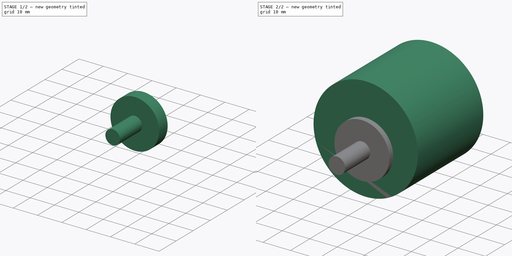
[diagram: build sequence overview — one tinted view per stage of 2, left to right]
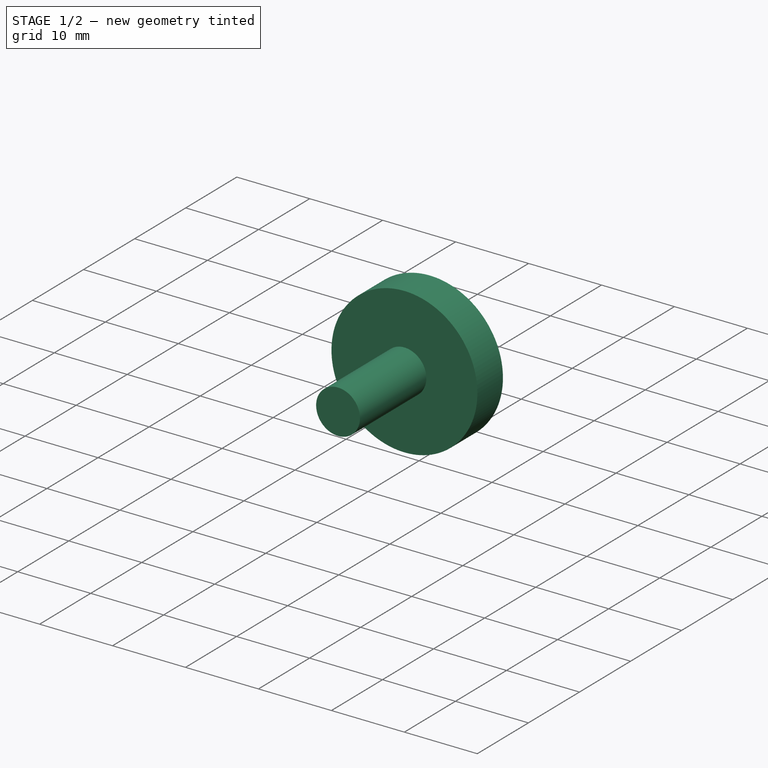
[diagram: stage 1 of 2 — iso view after this stage's code; geometry added in this stage tinted green]
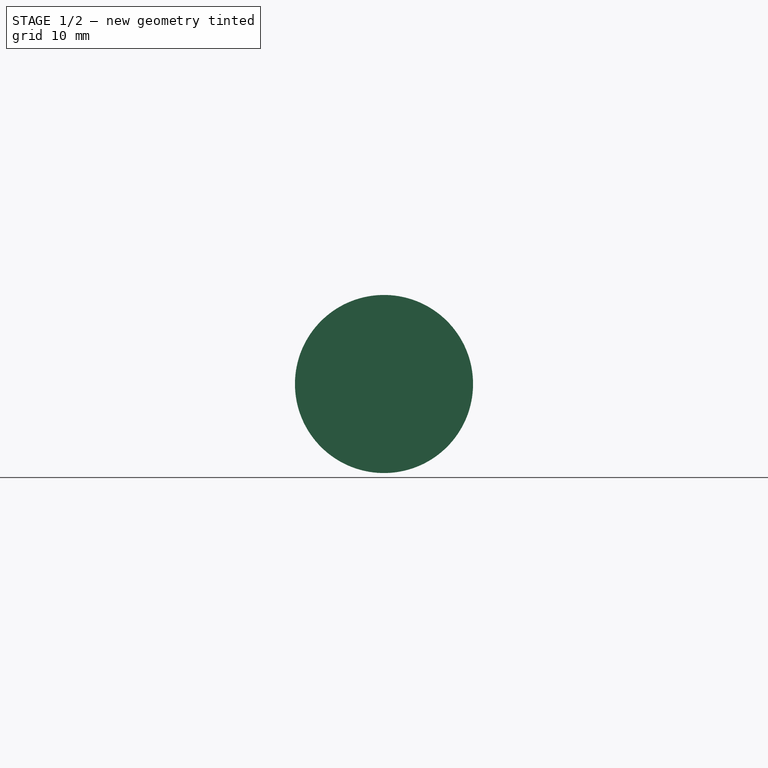
[diagram: stage 1 of 2 — front view after this stage's code; geometry added in this stage tinted green]
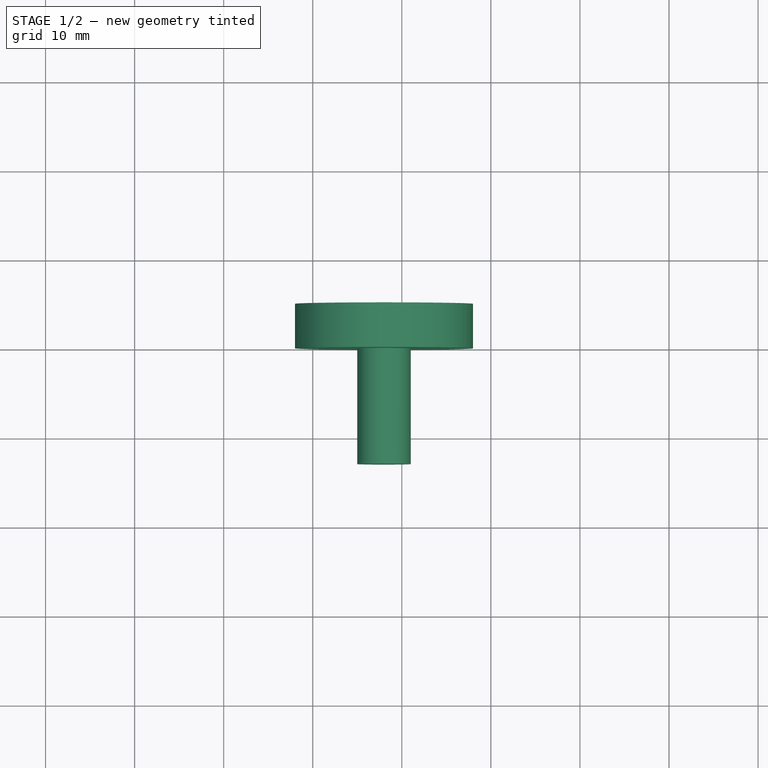
[diagram: stage 1 of 2 — top view after this stage's code; geometry added in this stage tinted green]
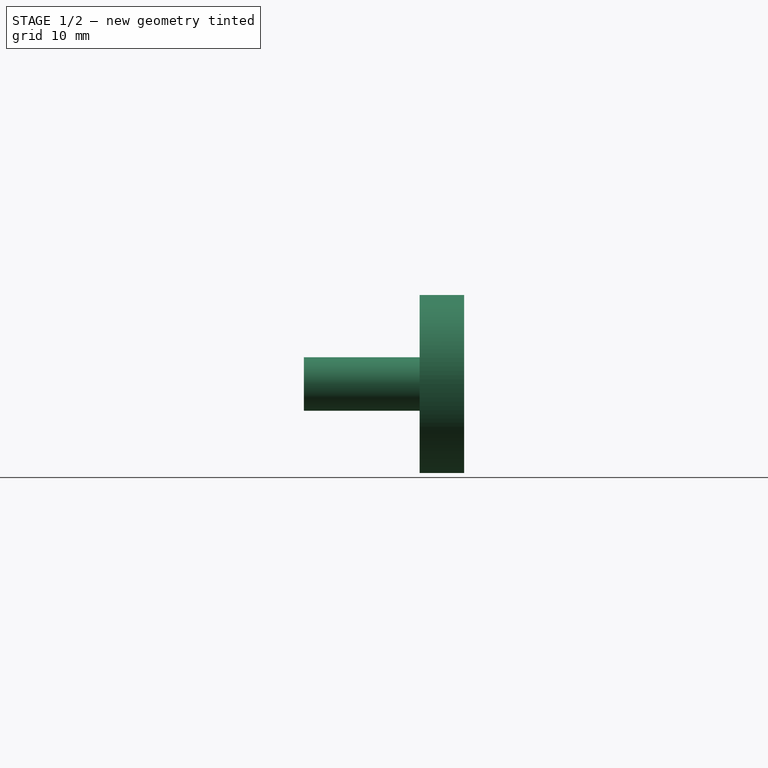
[diagram: stage 1 of 2 — right view after this stage's code; geometry added in this stage tinted green]
FCSTD DOCUMENT  (FreeCAD 0.21R32110 (Git))
Label: Encoder
License: All rights reserved
LicenseURL: http://en.wikipedia.org/wiki/All_rights_reserved
objects: Sketcher::SketchObject×3, PartDesign::Pad×3, PartDesign::Body×1, App::Part×1
note: 10 computed .brp shape members not serialized (recipe doc carries the construction recipe); baked Part::Feature solids carry a one-line shape summary decoded from their .brp

FEATURE [Sketcher::SketchObject] Sketch036
  AttachmentOffset = pos=(0,0,-80) rot=(0,0,1;0rad)
  FullyConstrained = true
  MapMode = 5
  Placement = pos=(0,80,1.78e-14) rot=(1,0,0;1.5708rad)
  Support = -> [XZ_Plane013]
  sketch-geometry (1):
    g0: Circle CenterX=38 CenterY=-5 CenterZ=0 NormalX=0 NormalY=0 NormalZ=1 AngleXU=0 Radius=10
  constraints (3):
    c: DistanceX(g0) = 38
    c: DistanceY(g0) = -5
    c: Diameter(g0) = 20
FEATURE [PartDesign::Pad] Pad025
  Direction = (0,-1,-2e-16)
  Length = 5
  Length2 = 10
  Placement = pos=(0,0,0) rot=(1,0,0;1.5708rad)
  Profile = -> Sketch036
  ReferenceAxis = -> Sketch036 [N_Axis]
  Reversed = true
  Type = 0
FEATURE [Sketcher::SketchObject] Sketch037
  AttachmentOffset = pos=(0,0,-80) rot=(0,0,1;0rad)
  FullyConstrained = true
  MapMode = 5
  Placement = pos=(0,80,1.78e-14) rot=(1,0,0;1.5708rad)
  Support = -> [XZ_Plane013]
  sketch-geometry (1):
    g0: Circle CenterX=38 CenterY=-5 CenterZ=0 NormalX=0 NormalY=0 NormalZ=1 AngleXU=0 Radius=3
  constraints (3):
    c: Diameter(g0) = 6
    c: DistanceY(g0) = -5
    c: DistanceX(g0) = 38
FEATURE [PartDesign::Pad] Pad026
  BaseFeature = -> Pad025
  Direction = (0,-1,-2e-16)
  Length = 13
  Length2 = 10
  Placement = pos=(0,0,0) rot=(1,0,0;1.5708rad)
  Profile = -> Sketch037
  ReferenceAxis = -> Sketch037 [N_Axis]
  Type = 0
FEATURE [PartDesign::Body] Body009  label="Encoder_Shaft"
  Group = -> [Sketch036,Sketch037,Pad025,Pad026]
  Origin = -> Origin013
  Placement = pos=(0,-3,3) rot=(0,0,1;0rad)
  Tip = -> Pad026
FEATURE [App::Part] Part
  Group = -> [Sketch002,Pad002,Body009]
  Origin = -> Origin
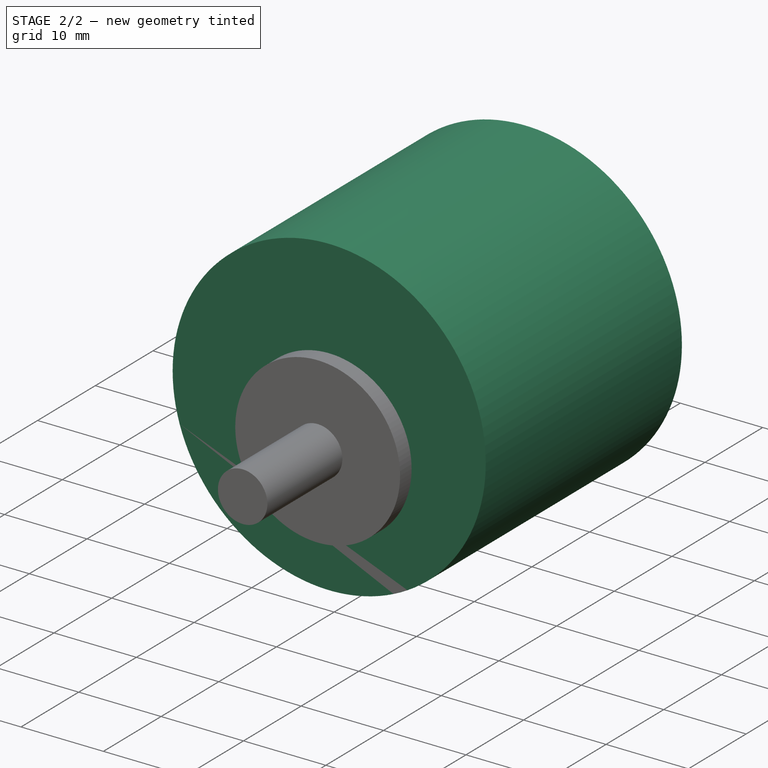
[diagram: stage 2 of 2 — iso view after this stage's code; geometry added in this stage tinted green]
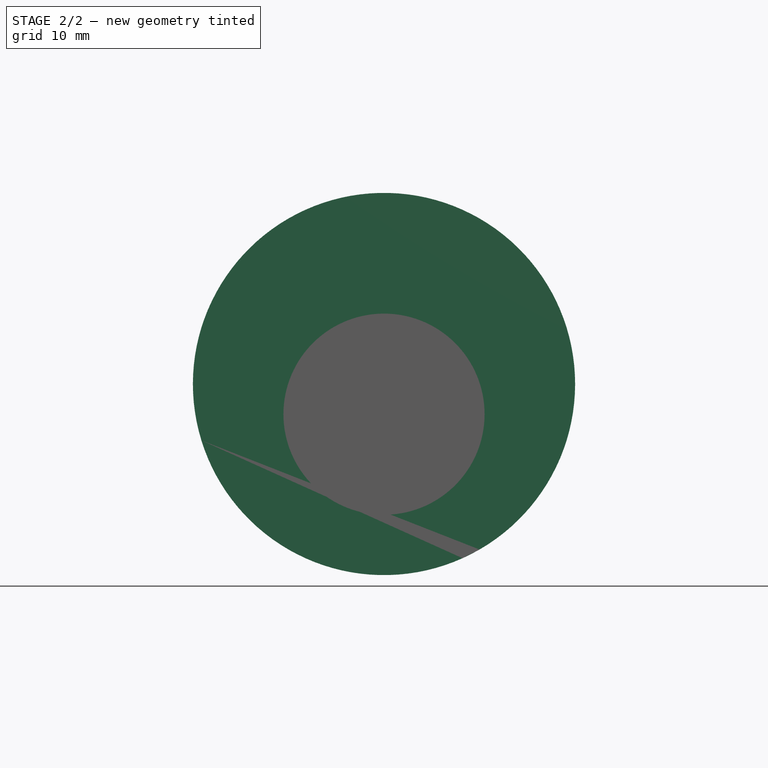
[diagram: stage 2 of 2 — front view after this stage's code; geometry added in this stage tinted green]
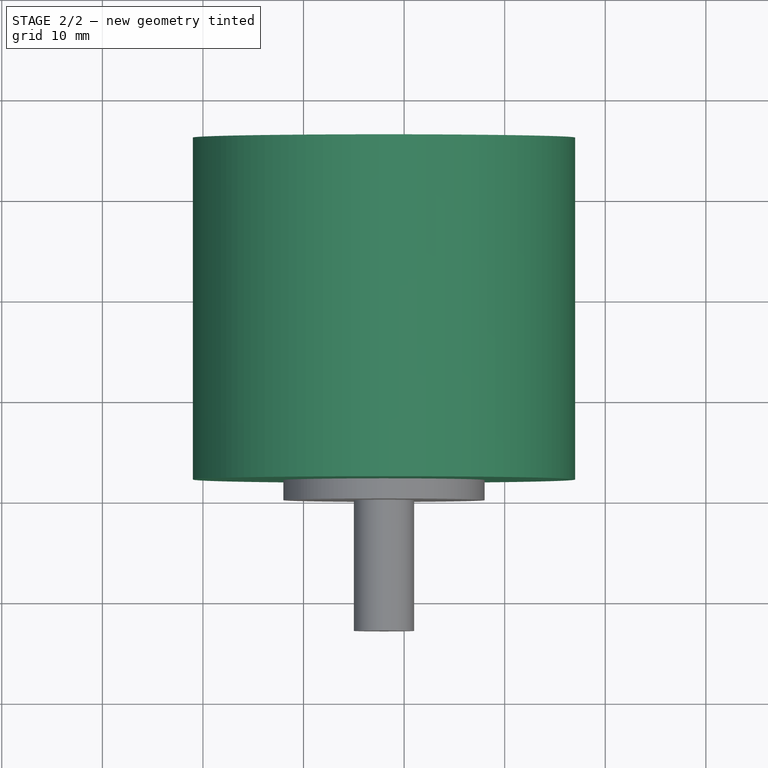
[diagram: stage 2 of 2 — top view after this stage's code; geometry added in this stage tinted green]
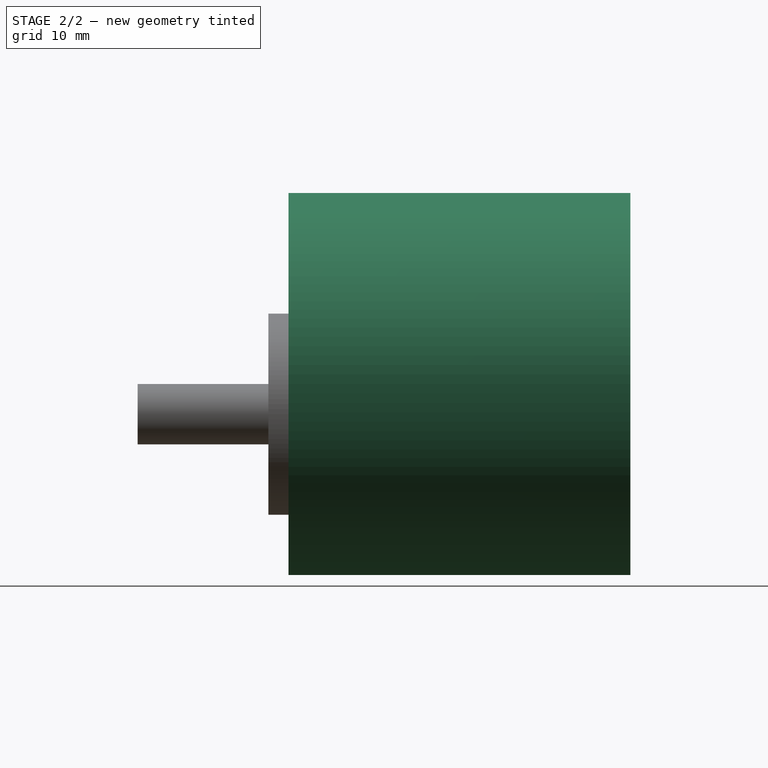
[diagram: stage 2 of 2 — right view after this stage's code; geometry added in this stage tinted green]
FEATURE [Sketcher::SketchObject] Sketch002
  AttachmentOffset = pos=(0,0,-60) rot=(0,0,1;0rad)
  FullyConstrained = true
  MapMode = 5
  Placement = pos=(0,82,3) rot=(1,0,0;1.5708rad)
  sketch-geometry (1):
    g0: Circle CenterX=38 CenterY=-5 CenterZ=0 NormalX=0 NormalY=0 NormalZ=1 AngleXU=0 Radius=19
  constraints (3):
    c: Diameter(g0) = 38
    c: DistanceX(g0) = 38
    c: DistanceY(g0) = -5
FEATURE [PartDesign::Pad] Pad002  label="Encoder"
  Direction = (0,-1,2e-16)
  Length = 34
  Length2 = 10
  Placement = pos=(0,82,3) rot=(1,0,0;1.5708rad)
  Profile = -> Sketch002
  ReferenceAxis = -> Sketch002 [N_Axis]
  Reversed = true
  Type = 0
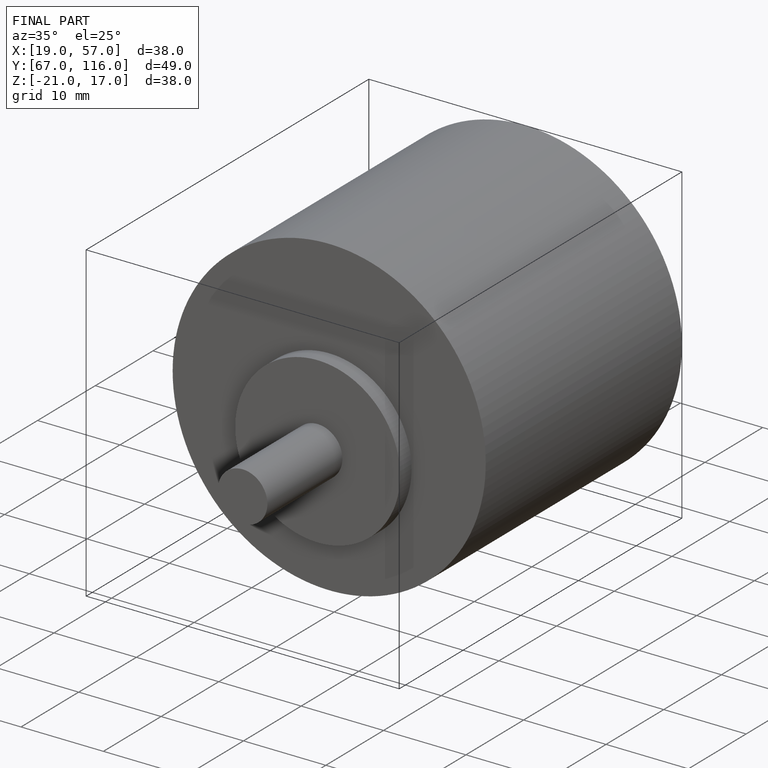
[diagram: finished part — iso view with bounding-box wireframe]
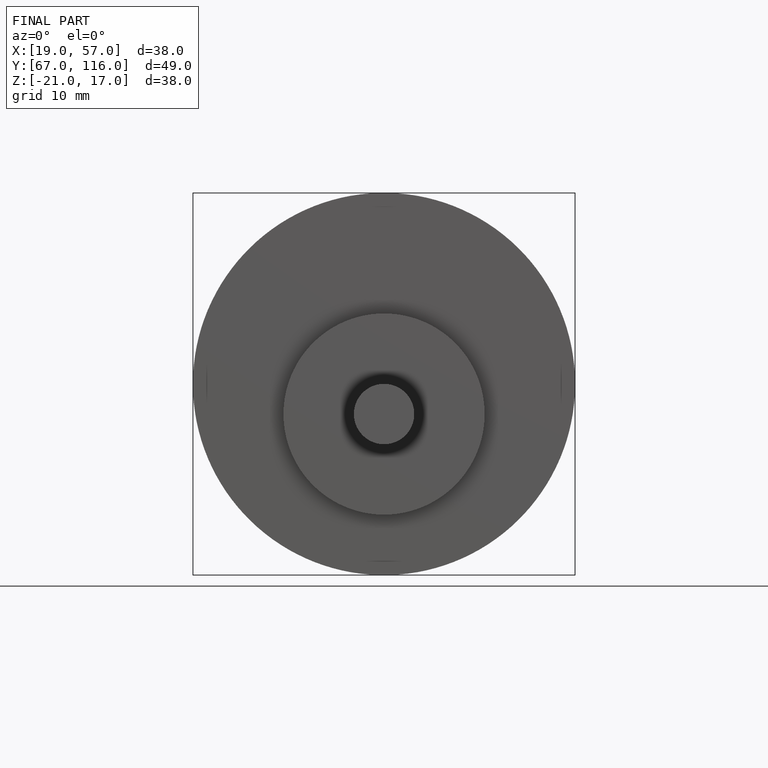
[diagram: finished part — front view with bounding-box wireframe]
